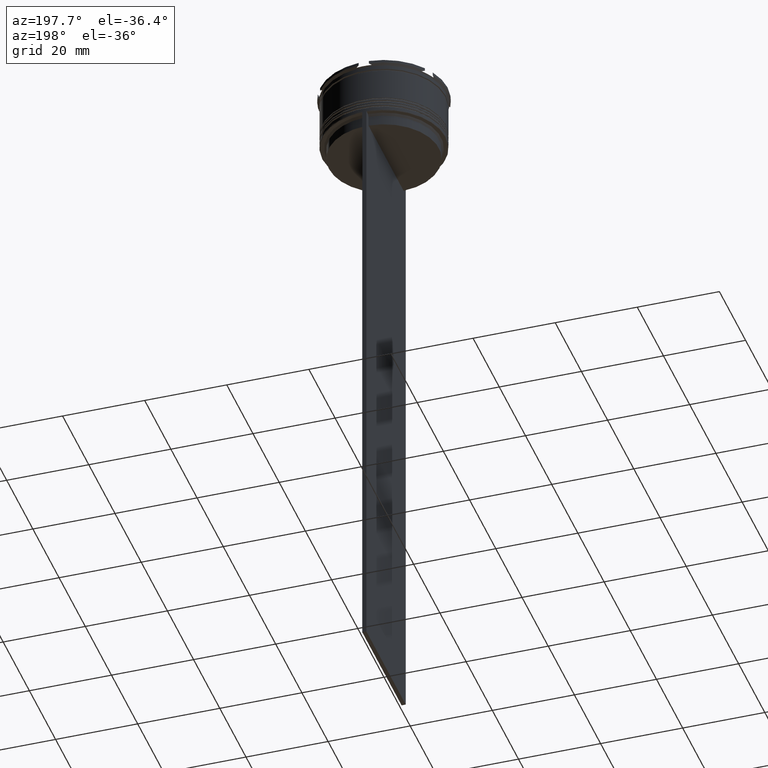
[diagram: clean part render]
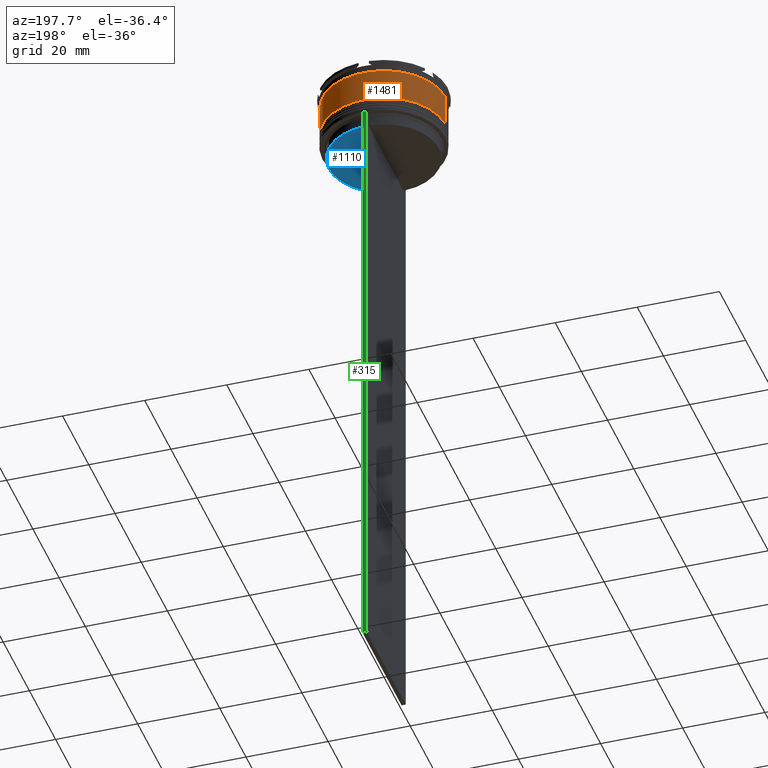
[diagram: same view with three faces highlighted in distinct colors, each labeled with its STEP entity id]
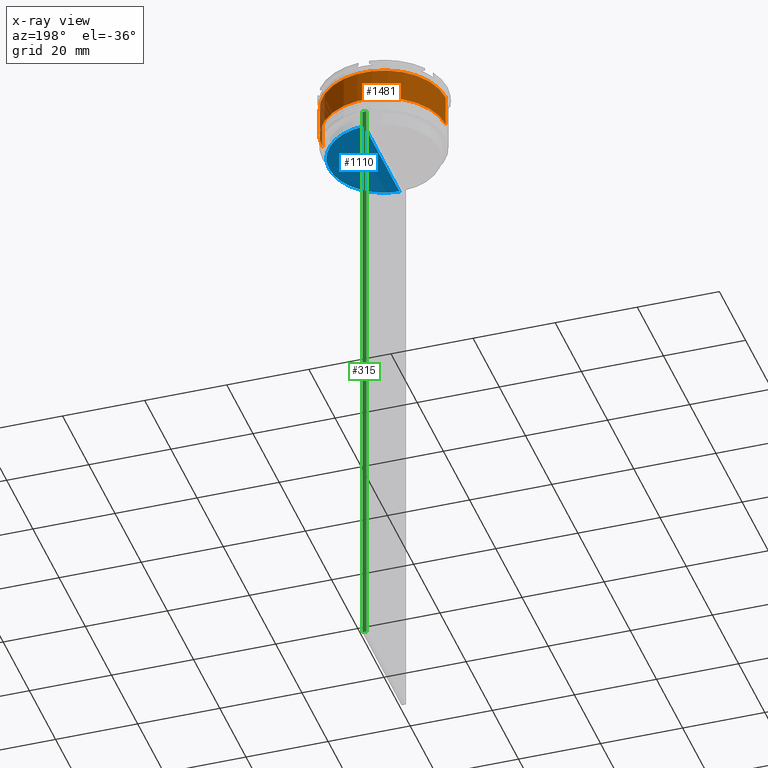
[diagram: x-ray of the same camera — body ghosted, the three highlighted faces saturated]
A machine part, auxiliary view with three faces highlighted in distinct colors.
The next image is the same camera in x-ray (body ghosted, the three faces saturated) — at least one of them is partly hidden behind the body in this view.
Their STEP definitions:

[orange] entity #1481 — the highlighted cylindrical surface (partial cylindrical patch) has radius 15 mm, axis along (-0, -0, 1).
#91 = DIRECTION ( 'NONE',  ( -0.000000000000000000, -0.000000000000000000, 1.000000000000000000 ) ) ;
#135 = FACE_OUTER_BOUND ( 'NONE', #1242, .T. ) ;
#185 = AXIS2_PLACEMENT_3D ( 'NONE', #1693, #2361, #587 ) ;
#244 = VECTOR ( 'NONE', #853, 1000.000000000000000 ) ;
#306 = ORIENTED_EDGE ( 'NONE', *, *, #1888, .F. ) ;
#352 = CARTESIAN_POINT ( 'NONE',  ( -15.00000000000000000, 1.836970198721029589E-15, 0.000000000000000000 ) ) ;
#361 = CARTESIAN_POINT ( 'NONE',  ( 0.000000000000000000, 0.000000000000000000, -2.699999999999999734 ) ) ;
#556 = DIRECTION ( 'NONE',  ( -0.000000000000000000, -0.000000000000000000, 1.000000000000000000 ) ) ;
#587 = DIRECTION ( 'NONE',  ( 1.000000000000000000, 0.000000000000000000, 0.000000000000000000 ) ) ;
#664 = LINE ( 'NONE', #1327, #244 ) ;
#703 = AXIS2_PLACEMENT_3D ( 'NONE', #2676, #1369, #2700 ) ;
#853 = DIRECTION ( 'NONE',  ( -0.000000000000000000, -0.000000000000000000, 1.000000000000000000 ) ) ;
#1181 = ORIENTED_EDGE ( 'NONE', *, *, #1472, .T. ) ;
#1242 = EDGE_LOOP ( 'NONE', ( #1978, #1181, #306, #2721 ) ) ;
#1248 = VECTOR ( 'NONE', #556, 1000.000000000000000 ) ;
#1327 = CARTESIAN_POINT ( 'NONE',  ( 15.00000000000000000, 0.000000000000000000, 0.000000000000000000 ) ) ;
#1369 = DIRECTION ( 'NONE',  ( -0.000000000000000000, -0.000000000000000000, 1.000000000000000000 ) ) ;
#1471 = CYLINDRICAL_SURFACE ( 'NONE', #185, 15.00000000000000000 ) ;
#1472 = EDGE_CURVE ( 'NONE', #2256, #1802, #2564, .T. ) ;
#1481 = ADVANCED_FACE ( 'NONE', ( #135 ), #1471, .T. ) ;
#1693 = CARTESIAN_POINT ( 'NONE',  ( 0.000000000000000000, 0.000000000000000000, 0.000000000000000000 ) ) ;
#1802 = VERTEX_POINT ( 'NONE', #2258 ) ;
#1888 = EDGE_CURVE ( 'NONE', #2415, #1802, #2148, .T. ) ;
#1968 = VERTEX_POINT ( 'NONE', #2164 ) ;
#1978 = ORIENTED_EDGE ( 'NONE', *, *, #2061, .T. ) ;
#2061 = EDGE_CURVE ( 'NONE', #1968, #2256, #2668, .T. ) ;
#2148 = CIRCLE ( 'NONE', #2806, 14.99999999999999822 ) ;
#2164 = CARTESIAN_POINT ( 'NONE',  ( 15.00000000000000178, 0.000000000000000000, -10.50000000000000178 ) ) ;
#2172 = CARTESIAN_POINT ( 'NONE',  ( -15.00000000000000355, 1.836970198721029983E-15, -10.50000000000000178 ) ) ;
#2256 = VERTEX_POINT ( 'NONE', #2172 ) ;
#2258 = CARTESIAN_POINT ( 'NONE',  ( -14.99999999999999822, 1.836970198721029194E-15, -2.699999999999999734 ) ) ;
#2361 = DIRECTION ( 'NONE',  ( -0.000000000000000000, -0.000000000000000000, 1.000000000000000000 ) ) ;
#2415 = VERTEX_POINT ( 'NONE', #2439 ) ;
#2439 = CARTESIAN_POINT ( 'NONE',  ( 14.99999999999999822, 0.000000000000000000, -2.699999999999999734 ) ) ;
#2564 = LINE ( 'NONE', #352, #1248 ) ;
#2601 = DIRECTION ( 'NONE',  ( 1.000000000000000000, 0.000000000000000000, 0.000000000000000000 ) ) ;
#2668 = CIRCLE ( 'NONE', #703, 15.00000000000000178 ) ;
#2676 = CARTESIAN_POINT ( 'NONE',  ( 0.000000000000000000, 0.000000000000000000, -10.50000000000000178 ) ) ;
#2700 = DIRECTION ( 'NONE',  ( 1.000000000000000000, 0.000000000000000000, 0.000000000000000000 ) ) ;
#2721 = ORIENTED_EDGE ( 'NONE', *, *, #2834, .F. ) ;
#2806 = AXIS2_PLACEMENT_3D ( 'NONE', #361, #91, #2601 ) ;
#2834 = EDGE_CURVE ( 'NONE', #1968, #2415, #664, .T. ) ;

[blue] entity #1110 — the highlighted planar face has unit normal (0, -0, 1).
#104 = AXIS2_PLACEMENT_3D ( 'NONE', #727, #761, #2548 ) ;
#224 = VERTEX_POINT ( 'NONE', #2178 ) ;
#303 = CARTESIAN_POINT ( 'NONE',  ( 13.40000000000000391, 0.000000000000000000, -17.00000000000000000 ) ) ;
#353 = CARTESIAN_POINT ( 'NONE',  ( 0.000000000000000000, 0.000000000000000000, -17.00000000000000000 ) ) ;
#355 = CARTESIAN_POINT ( 'NONE',  ( 0.000000000000000000, 13.40000000000000391, -17.00000000000000000 ) ) ;
#602 = DIRECTION ( 'NONE',  ( 1.000000000000000000, 0.000000000000000000, 0.000000000000000000 ) ) ;
#727 = CARTESIAN_POINT ( 'NONE',  ( 0.000000000000000000, 0.000000000000000000, -17.00000000000000000 ) ) ;
#761 = DIRECTION ( 'NONE',  ( -0.000000000000000000, -0.000000000000000000, 1.000000000000000000 ) ) ;
#779 = DIRECTION ( 'NONE',  ( 1.000000000000000000, 0.000000000000000000, 0.000000000000000000 ) ) ;
#850 = CIRCLE ( 'NONE', #1127, 13.40000000000000391 ) ;
#883 = DIRECTION ( 'NONE',  ( 0.000000000000000000, -1.000000000000000000, 0.000000000000000000 ) ) ;
#918 = CARTESIAN_POINT ( 'NONE',  ( 0.5000000000000001110, 13.40000000000000391, -17.00000000000000000 ) ) ;
#966 = EDGE_CURVE ( 'NONE', #224, #1362, #1918, .T. ) ;
#1110 = ADVANCED_FACE ( 'NONE', ( #2364 ), #1937, .F. ) ;
#1127 = AXIS2_PLACEMENT_3D ( 'NONE', #353, #2793, #779 ) ;
#1240 = DIRECTION ( 'NONE',  ( 0.000000000000000000, -0.000000000000000000, 1.000000000000000000 ) ) ;
#1301 = CARTESIAN_POINT ( 'NONE',  ( 0.5000000000000001110, 13.39066839257847086, -17.00000000000000000 ) ) ;
#1362 = VERTEX_POINT ( 'NONE', #303 ) ;
#1406 = AXIS2_PLACEMENT_3D ( 'NONE', #355, #1240, #602 ) ;
#1455 = EDGE_LOOP ( 'NONE', ( #2729, #1658, #1886 ) ) ;
#1658 = ORIENTED_EDGE ( 'NONE', *, *, #2767, .F. ) ;
#1886 = ORIENTED_EDGE ( 'NONE', *, *, #966, .F. ) ;
#1918 = CIRCLE ( 'NONE', #104, 13.40000000000000391 ) ;
#1937 = PLANE ( 'NONE',  #1406 ) ;
#1965 = VECTOR ( 'NONE', #883, 1000.000000000000000 ) ;
#2178 = CARTESIAN_POINT ( 'NONE',  ( 0.5000000000000001110, -13.39066839257847086, -17.00000000000000000 ) ) ;
#2364 = FACE_OUTER_BOUND ( 'NONE', #1455, .T. ) ;
#2444 = VERTEX_POINT ( 'NONE', #1301 ) ;
#2497 = EDGE_CURVE ( 'NONE', #2444, #224, #2878, .T. ) ;
#2548 = DIRECTION ( 'NONE',  ( 1.000000000000000000, 0.000000000000000000, 0.000000000000000000 ) ) ;
#2729 = ORIENTED_EDGE ( 'NONE', *, *, #2497, .F. ) ;
#2767 = EDGE_CURVE ( 'NONE', #1362, #2444, #850, .T. ) ;
#2793 = DIRECTION ( 'NONE',  ( -0.000000000000000000, -0.000000000000000000, 1.000000000000000000 ) ) ;
#2878 = LINE ( 'NONE', #918, #1965 ) ;

[green] entity #315 — the highlighted planar face has unit normal (0, -1, -0).
#294 = VERTEX_POINT ( 'NONE', #1826 ) ;
#315 = ADVANCED_FACE ( 'NONE', ( #2211 ), #2445, .F. ) ;
#320 = LINE ( 'NONE', #2600, #1541 ) ;
#389 = VERTEX_POINT ( 'NONE', #909 ) ;
#453 = LINE ( 'NONE', #1341, #2761 ) ;
#458 = EDGE_CURVE ( 'NONE', #2596, #389, #2339, .T. ) ;
#576 = EDGE_CURVE ( 'NONE', #2320, #294, #320, .T. ) ;
#729 = CARTESIAN_POINT ( 'NONE',  ( 0.5000000000000001110, 14.99999999999999645, -163.9999999999999716 ) ) ;
#730 = ORIENTED_EDGE ( 'NONE', *, *, #1997, .F. ) ;
#736 = ORIENTED_EDGE ( 'NONE', *, *, #1733, .T. ) ;
#784 = ORIENTED_EDGE ( 'NONE', *, *, #458, .T. ) ;
#909 = CARTESIAN_POINT ( 'NONE',  ( -0.4999999999999998890, 14.99999999999999645, -163.9999999999999716 ) ) ;
#1204 = DIRECTION ( 'NONE',  ( -1.000000000000000000, 0.000000000000000000, 0.000000000000000000 ) ) ;
#1325 = DIRECTION ( 'NONE',  ( 0.000000000000000000, -1.000000000000000000, -0.000000000000000000 ) ) ;
#1341 = CARTESIAN_POINT ( 'NONE',  ( 0.5000000000000001110, 14.99999999999999645, 16.01666203960726165 ) ) ;
#1371 = CARTESIAN_POINT ( 'NONE',  ( 0.5000000000000001110, 14.99999999999999645, 16.01666203960726165 ) ) ;
#1541 = VECTOR ( 'NONE', #2830, 1000.000000000000000 ) ;
#1546 = CARTESIAN_POINT ( 'NONE',  ( -0.4999999999999998890, 14.99999999999999645, 16.01666203960726165 ) ) ;
#1733 = EDGE_CURVE ( 'NONE', #294, #2596, #453, .T. ) ;
#1796 = ORIENTED_EDGE ( 'NONE', *, *, #576, .T. ) ;
#1826 = CARTESIAN_POINT ( 'NONE',  ( 0.5000000000000001110, 14.99999999999999645, -14.00000000000000178 ) ) ;
#1876 = EDGE_LOOP ( 'NONE', ( #730, #1796, #736, #784 ) ) ;
#1986 = LINE ( 'NONE', #1546, #2059 ) ;
#1997 = EDGE_CURVE ( 'NONE', #2320, #389, #1986, .T. ) ;
#2010 = AXIS2_PLACEMENT_3D ( 'NONE', #1371, #1325, #2223 ) ;
#2059 = VECTOR ( 'NONE', #2658, 1000.000000000000000 ) ;
#2211 = FACE_OUTER_BOUND ( 'NONE', #1876, .T. ) ;
#2223 = DIRECTION ( 'NONE',  ( 0.000000000000000000, 0.000000000000000000, -1.000000000000000000 ) ) ;
#2239 = DIRECTION ( 'NONE',  ( 0.000000000000000000, 0.000000000000000000, -1.000000000000000000 ) ) ;
#2273 = CARTESIAN_POINT ( 'NONE',  ( 0.5000000000000001110, 14.99999999999999645, -163.9999999999999716 ) ) ;
#2320 = VERTEX_POINT ( 'NONE', #2631 ) ;
#2339 = LINE ( 'NONE', #729, #2484 ) ;
#2445 = PLANE ( 'NONE',  #2010 ) ;
#2484 = VECTOR ( 'NONE', #1204, 1000.000000000000000 ) ;
#2596 = VERTEX_POINT ( 'NONE', #2273 ) ;
#2600 = CARTESIAN_POINT ( 'NONE',  ( 0.5000000000000001110, 14.99999999999999645, -14.00000000000000178 ) ) ;
#2631 = CARTESIAN_POINT ( 'NONE',  ( -0.4999999999999998890, 14.99999999999999645, -14.00000000000000178 ) ) ;
#2658 = DIRECTION ( 'NONE',  ( 0.000000000000000000, 0.000000000000000000, -1.000000000000000000 ) ) ;
#2761 = VECTOR ( 'NONE', #2239, 1000.000000000000000 ) ;
#2830 = DIRECTION ( 'NONE',  ( 1.000000000000000000, 0.000000000000000000, 0.000000000000000000 ) ) ;